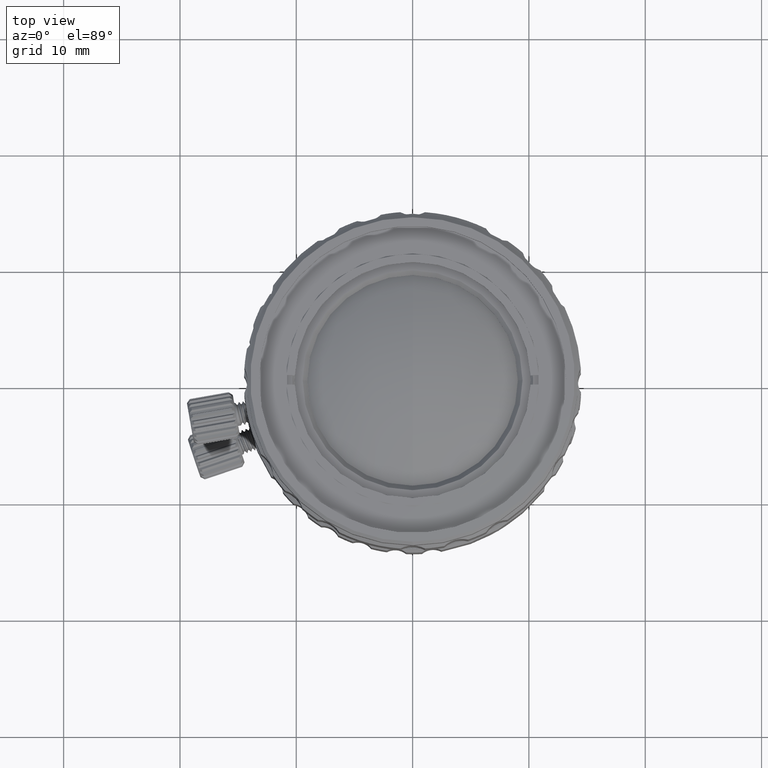
[diagram: clean part render]
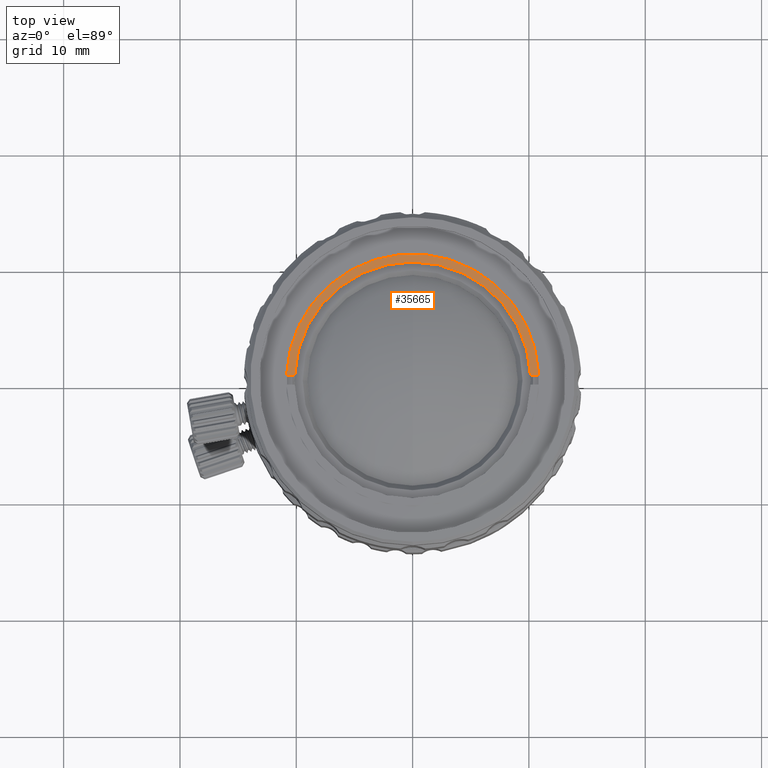
[diagram: same view with one face highlighted and labeled with its STEP entity id]
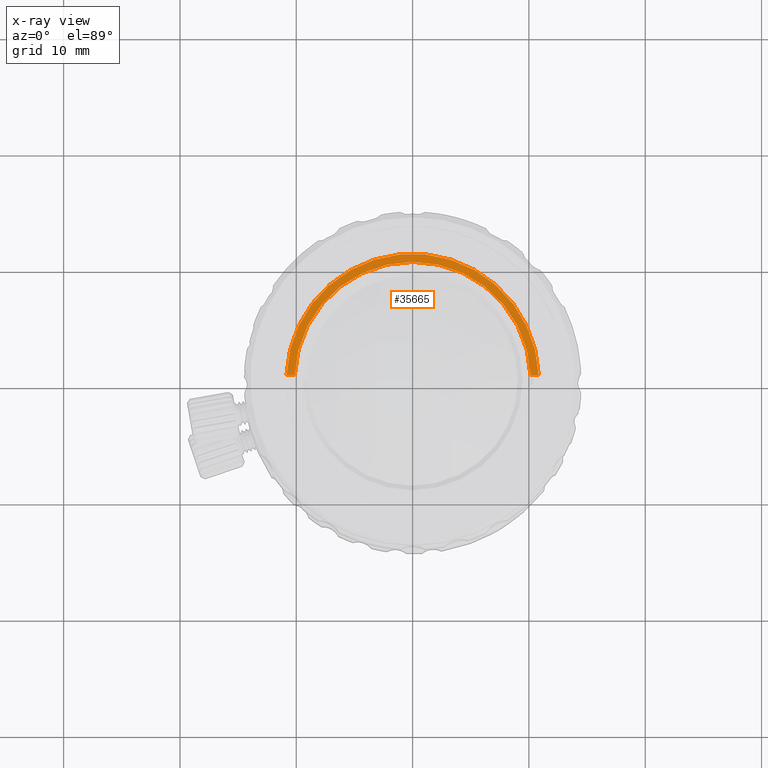
[diagram: x-ray of the same camera — body ghosted, the highlighted face saturated]
A machine part, top view. The second image highlights one B-rep face of the part: STEP entity #35665.
The next image is the same camera in x-ray: the body ghosted, the highlighted face saturated — about 0% of this face is hidden behind the body in this view.
In plain terms, the highlighted planar face has unit normal (0, 0, 1).
Its self-contained STEP definition (entity closure, byte-faithful):
#4285 = ORIENTED_EDGE ( 'NONE', *, *, #34017, .T. ) ;
#6903 = DIRECTION ( 'NONE',  ( -0.9993202051805539776, 0.03686634668495830658, 0.000000000000000000 ) ) ;
#8853 = AXIS2_PLACEMENT_3D ( 'NONE', #27161, #16745, #37934 ) ;
#11074 = EDGE_CURVE ( 'NONE', #14731, #26861, #26390, .T. ) ;
#13006 = CARTESIAN_POINT ( 'NONE',  ( -10.14211892286999905, 0.4000000000000000222, 34.93600007378000782 ) ) ;
#13065 = CARTESIAN_POINT ( 'NONE',  ( 10.14211892286999905, 0.4000000000000000222, 34.93600007378000782 ) ) ;
#14731 = VERTEX_POINT ( 'NONE', #65524 ) ;
#16688 = PLANE ( 'NONE',  #48919 ) ;
#16745 = DIRECTION ( 'NONE',  ( 0.000000000000000000, 0.000000000000000000, 1.000000000000000000 ) ) ;
#18722 = CARTESIAN_POINT ( 'NONE',  ( 10.14211892286999905, 0.4000000000000000222, 34.93600007378000782 ) ) ;
#20885 = FACE_OUTER_BOUND ( 'NONE', #37283, .T. ) ;
#22198 = EDGE_CURVE ( 'NONE', #41899, #37471, #35494, .T. ) ;
#22542 = CARTESIAN_POINT ( 'NONE',  ( 0.000000000000000000, 0.000000000000000000, 34.93600007378000782 ) ) ;
#23492 = ORIENTED_EDGE ( 'NONE', *, *, #11074, .F. ) ;
#24553 = CARTESIAN_POINT ( 'NONE',  ( 10.84262797960999869, 0.4000000000000000222, 34.93600007378000782 ) ) ;
#26390 = CIRCLE ( 'NONE', #68486, 10.85000375594999866 ) ;
#26861 = VERTEX_POINT ( 'NONE', #24553 ) ;
#27161 = CARTESIAN_POINT ( 'NONE',  ( 0.000000000000000000, 0.000000000000000000, 34.93600007378000782 ) ) ;
#29714 = ORIENTED_EDGE ( 'NONE', *, *, #22198, .F. ) ;
#32320 = DIRECTION ( 'NONE',  ( 0.000000000000000000, 0.000000000000000000, 1.000000000000000000 ) ) ;
#34017 = EDGE_CURVE ( 'NONE', #14731, #37471, #58730, .T. ) ;
#34623 = ORIENTED_EDGE ( 'NONE', *, *, #43219, .T. ) ;
#35494 = CIRCLE ( 'NONE', #8853, 10.15000375594000381 ) ;
#35665 = ADVANCED_FACE ( 'NONE', ( #20885 ), #16688, .T. ) ;
#37283 = EDGE_LOOP ( 'NONE', ( #29714, #34623, #23492, #4285 ) ) ;
#37471 = VERTEX_POINT ( 'NONE', #13006 ) ;
#37924 = DIRECTION ( 'NONE',  ( 1.000000000000000000, 0.000000000000000000, 0.000000000000000000 ) ) ;
#37934 = DIRECTION ( 'NONE',  ( 0.9992231694429237754, 0.03940885241209089035, 0.000000000000000000 ) ) ;
#38229 = VECTOR ( 'NONE', #65586, 1000.000000000000000 ) ;
#41899 = VERTEX_POINT ( 'NONE', #13065 ) ;
#43219 = EDGE_CURVE ( 'NONE', #41899, #26861, #54835, .T. ) ;
#44740 = DIRECTION ( 'NONE',  ( 0.000000000000000000, 0.000000000000000000, -1.000000000000000000 ) ) ;
#48919 = AXIS2_PLACEMENT_3D ( 'NONE', #52808, #32320, #53482 ) ;
#52808 = CARTESIAN_POINT ( 'NONE',  ( 0.000000000000000000, 10.85000375594999866, 34.93600007378000782 ) ) ;
#53482 = DIRECTION ( 'NONE',  ( 1.000000000000000000, 0.000000000000000000, 0.000000000000000000 ) ) ;
#53524 = CARTESIAN_POINT ( 'NONE',  ( -10.84262797960999869, 0.4000000000000000222, 34.93600007378000782 ) ) ;
#54835 = LINE ( 'NONE', #18722, #38229 ) ;
#58730 = LINE ( 'NONE', #53524, #67850 ) ;
#65524 = CARTESIAN_POINT ( 'NONE',  ( -10.84262797960999869, 0.4000000000000000222, 34.93600007378000782 ) ) ;
#65586 = DIRECTION ( 'NONE',  ( 1.000000000000000000, 0.000000000000000000, 0.000000000000000000 ) ) ;
#67850 = VECTOR ( 'NONE', #37924, 1000.000000000000000 ) ;
#68486 = AXIS2_PLACEMENT_3D ( 'NONE', #22542, #44740, #6903 ) ;